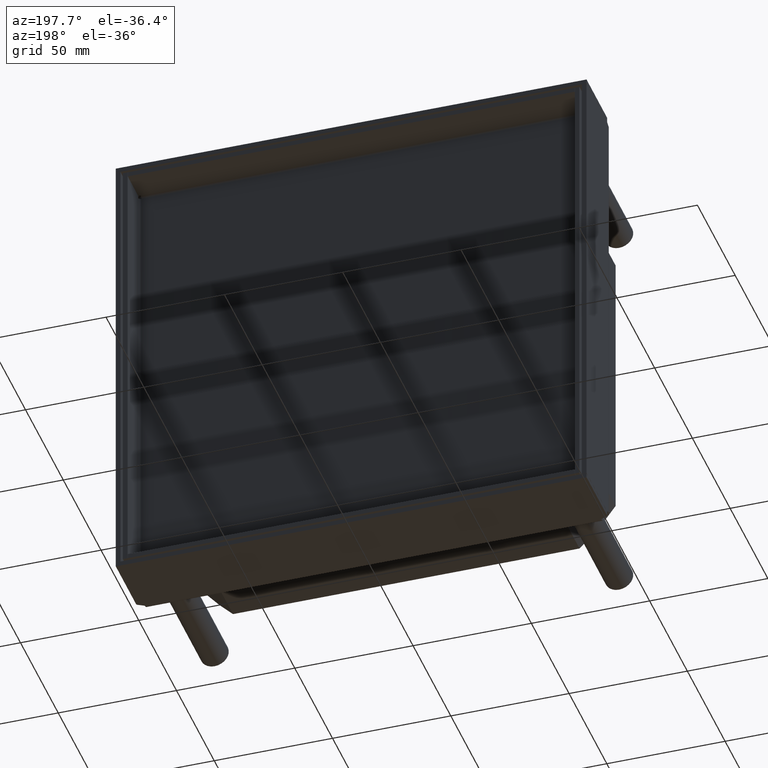
[diagram: clean part render]
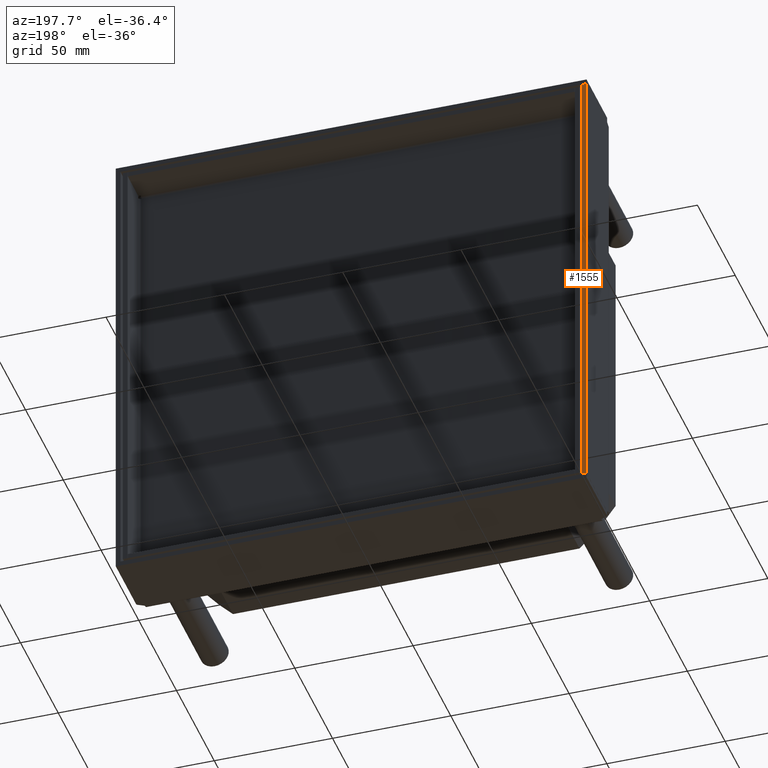
[diagram: same view with one face highlighted and labeled with its STEP entity id]
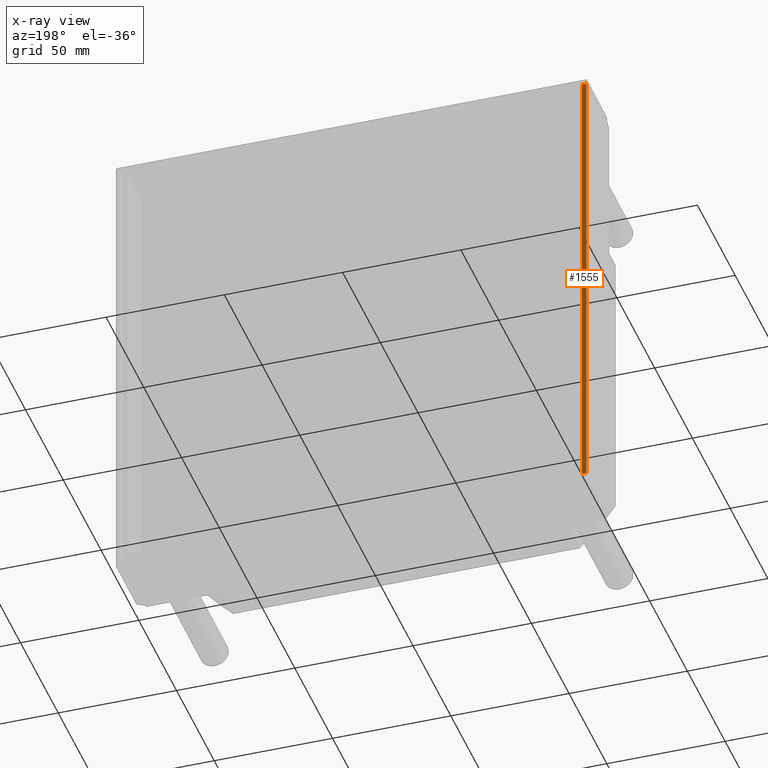
[diagram: x-ray of the same camera — body ghosted, the highlighted face saturated]
A machine part, auxiliary view. The second image highlights one B-rep face of the part: STEP entity #1555.
The next image is the same camera in x-ray: the body ghosted, the highlighted face saturated — about 0% of this face is hidden behind the body in this view.
In plain terms, the highlighted planar face has unit normal (0, 1, 0).
Its self-contained STEP definition (entity closure, byte-faithful):
#581=DIRECTION('',(1.E0,0.E0,0.E0));
#582=VECTOR('',#581,1.948E2);
#583=CARTESIAN_POINT('',(-9.74E1,3.2E1,-9.95E1));
#584=LINE('',#583,#582);
#588=DIRECTION('',(-1.E0,0.E0,0.E0));
#589=VECTOR('',#588,1.948E2);
#590=CARTESIAN_POINT('',(9.74E1,3.2E1,-9.75E1));
#591=LINE('',#590,#589);
#874=DIRECTION('',(0.E0,0.E0,1.E0));
#875=VECTOR('',#874,2.E0);
#876=CARTESIAN_POINT('',(9.74E1,3.2E1,-9.95E1));
#877=LINE('',#876,#875);
#895=DIRECTION('',(0.E0,0.E0,1.E0));
#896=VECTOR('',#895,2.E0);
#897=CARTESIAN_POINT('',(-9.74E1,3.2E1,-9.95E1));
#898=LINE('',#897,#896);
#1161=CARTESIAN_POINT('',(-9.74E1,3.2E1,-9.95E1));
#1162=VERTEX_POINT('',#1161);
#1167=CARTESIAN_POINT('',(-9.74E1,3.2E1,-9.75E1));
#1168=VERTEX_POINT('',#1167);
#1217=CARTESIAN_POINT('',(9.74E1,3.2E1,-9.95E1));
#1218=VERTEX_POINT('',#1217);
#1223=CARTESIAN_POINT('',(9.74E1,3.2E1,-9.75E1));
#1224=VERTEX_POINT('',#1223);
#1541=CARTESIAN_POINT('',(-4.87E1,3.2E1,-9.85E1));
#1542=DIRECTION('',(0.E0,1.E0,0.E0));
#1543=DIRECTION('',(1.E0,0.E0,0.E0));
#1544=AXIS2_PLACEMENT_3D('',#1541,#1542,#1543);
#1545=PLANE('',#1544);
#1547=ORIENTED_EDGE('',*,*,#1546,.T.);
#1549=ORIENTED_EDGE('',*,*,#1548,.T.);
#1550=ORIENTED_EDGE('',*,*,#1527,.T.);
#1552=ORIENTED_EDGE('',*,*,#1551,.F.);
#1553=EDGE_LOOP('',(#1547,#1549,#1550,#1552));
#1554=FACE_OUTER_BOUND('',#1553,.F.);
#1527=EDGE_CURVE('',#1224,#1168,#591,.T.);
#1546=EDGE_CURVE('',#1162,#1218,#584,.T.);
#1548=EDGE_CURVE('',#1218,#1224,#877,.T.);
#1551=EDGE_CURVE('',#1162,#1168,#898,.T.);
#1555=ADVANCED_FACE('',(#1554),#1545,.T.);